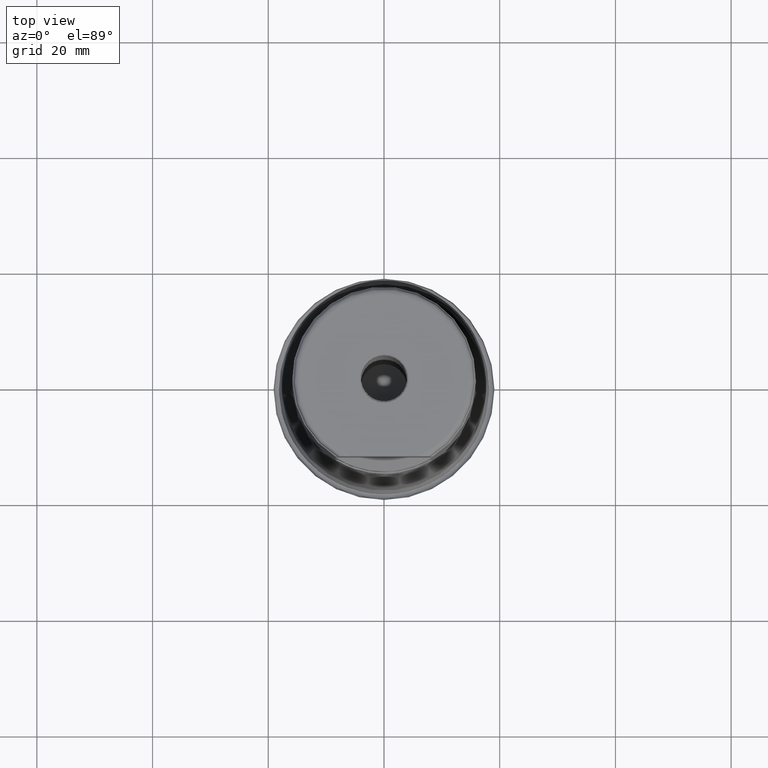
[diagram: clean part render]
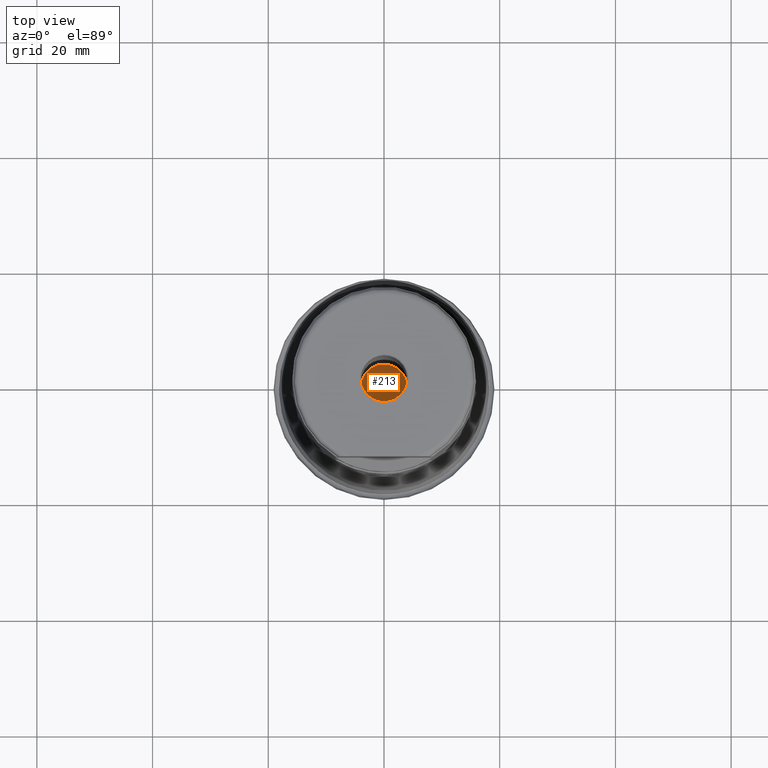
[diagram: same view with one face highlighted and labeled with its STEP entity id]
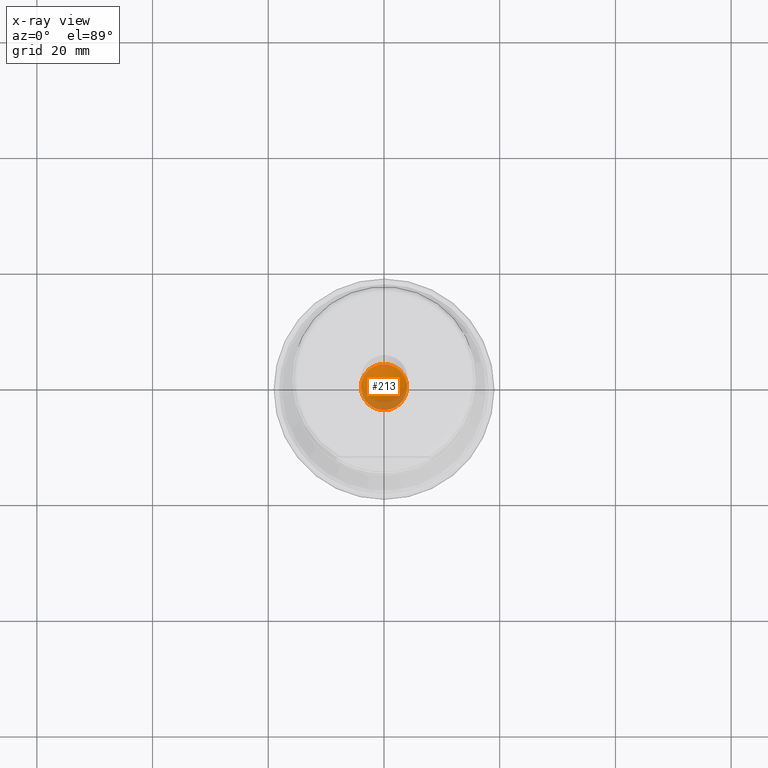
[diagram: x-ray of the same camera — body ghosted, the highlighted face saturated]
A machine part, top view. The second image highlights one B-rep face of the part: STEP entity #213.
The next image is the same camera in x-ray: the body ghosted, the highlighted face saturated — about 25% of this face is hidden behind the body in this view.
In plain terms, the highlighted conical surface has half-angle 59 deg.
Its self-contained STEP definition (entity closure, byte-faithful):
#156=VERTEX_LOOP('',#677);
#171=CONICAL_SURFACE('',#930,4.,59.);
#213=ADVANCED_FACE('',(#320,#321),#171,.F.);
#320=FACE_BOUND('',#418,.T.);
#321=FACE_BOUND('',#156,.T.);
#418=EDGE_LOOP('',(#544));
#544=ORIENTED_EDGE('',*,*,#747,.T.);
#676=VERTEX_POINT('',#1603);
#677=VERTEX_POINT('',#1604);
#747=EDGE_CURVE('',#676,#676,#802,.T.);
#802=CIRCLE('',#929,4.);
#929=AXIS2_PLACEMENT_3D('',#1602,#1065,#1066);
#930=AXIS2_PLACEMENT_3D('',#1605,#1067,#1068);
#1065=DIRECTION('',(0.,1.17145536458252E-15,1.));
#1066=DIRECTION('',(0.,1.,-8.67361737988404E-16));
#1067=DIRECTION('',(0.,1.17145536458252E-15,1.));
#1068=DIRECTION('',(0.,-1.,1.14796995212101E-15));
#1602=CARTESIAN_POINT('',(0.,2.92863841145631E-14,25.));
#1603=CARTESIAN_POINT('',(0.,4.00000000000003,25.));
#1604=CARTESIAN_POINT('',(0.,2.64708585324583E-14,22.5965575238898));
#1605=CARTESIAN_POINT('',(0.,2.92863841145631E-14,25.));